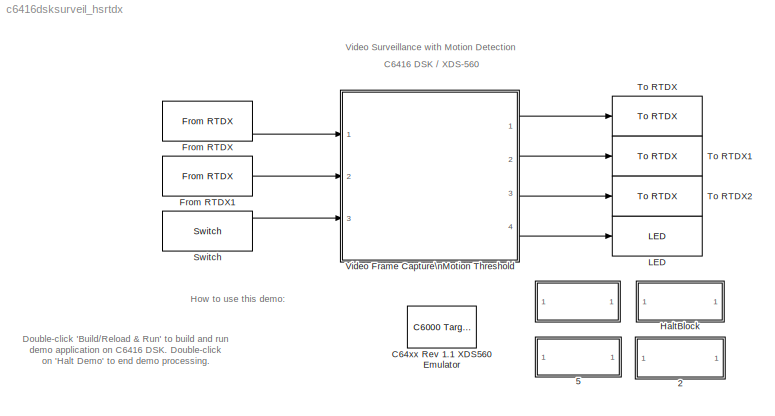
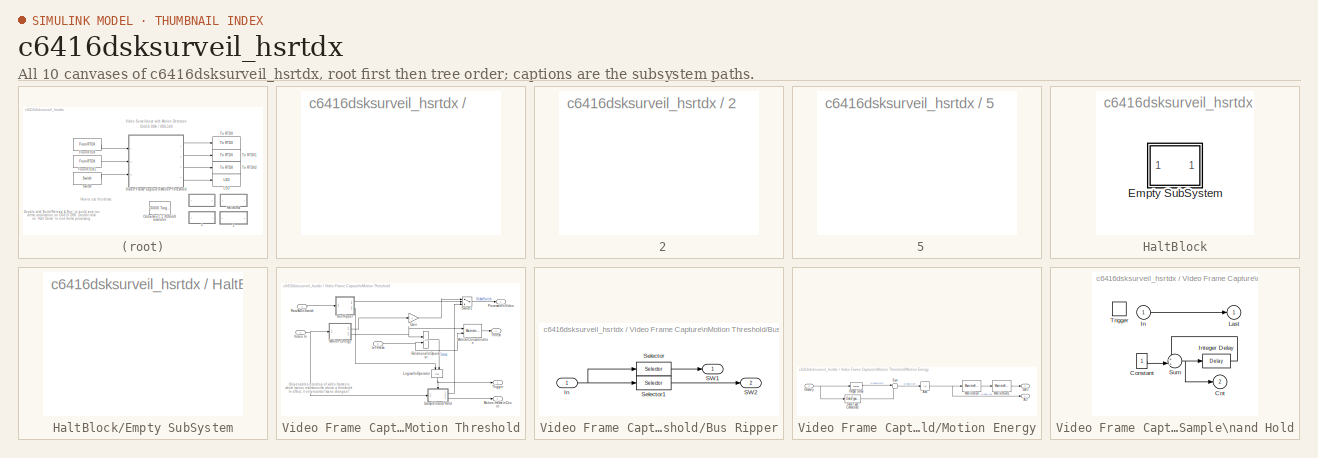
[diagram: thumbnail index - all 10 canvases of the model, root first then tree order]
MODEL c6416dsksurveil_hsrtdx
KIND model
BLOCK [SubSystem]  
  MaskDisplay = disp(sprintf('Build / Reload\\n& Run'))
  MaskIconFrame = on
  MaskIconOpaque = on
  MaskIconRotate = none
  MaskIconUnits = autoscale
  MaskType = Run demo
  MinAlgLoopOccurrences = off
  OpenFcn = surveil_script('run')
  Ports = []
  ShowPortLabels = off
  TreatAsAtomicUnit = off
BLOCK [SubSystem]  2
  MaskDescription = Double-clicking this button will display the demo script which generates code, builds, loads, executes application on the DSP, and arbitrates RTDX transfers.
  MaskDisplay = disp(sprintf('View Demo \\nScript'))
  MaskIconFrame = on
  MaskIconOpaque = on
  MaskIconRotate = none
  MaskIconUnits = autoscale
  MaskType = Run demo
  MinAlgLoopOccurrences = off
  OpenFcn = edit surveil_script
  Ports = []
  ShowPortLabels = off
  TreatAsAtomicUnit = off
BLOCK [SubSystem]  5
  MaskDescription = Double-clicking this button will display the demo script which generates code, builds, loads, executes application on the DSP, and arbitrates RTDX transfers.
  MaskDisplay = disp('Info')
  MaskIconFrame = on
  MaskIconOpaque = on
  MaskIconRotate = none
  MaskIconUnits = autoscale
  MaskType = Run demo
  MinAlgLoopOccurrences = off
  OpenFcn = web(fullfile(matlabroot,'toolbox','rtw','targets','tic6000','tic6000demos','html','VideoSurveillance_doc.html'))
  Ports = []
  ShowPortLabels = off
  TreatAsAtomicUnit = off
BLOCK [Reference] C64xx Rev 1.1 XDS560 Emulator  REF=c6000tgtpreflib/C6000 Target\nPreferences
  Ports = []
  ShowPortLabels = on
  SourceBlock = c6000tgtpreflib/C6000 Target\nPreferences
  SourceType = C6000 Target Preferences
  UserData = DataTag0
  UserDataPersistent = on
BLOCK [Reference] From RTDX  REF=rtdxBlocks/From RTDX
  Ports = [0, 1]
  SourceBlock = rtdxBlocks/From RTDX
  SourceType = From RTDX
  Ts = 1/15
  channelNameStr = videoFrames
  dType = uint8
  dims = [120 160]
  icMaskVar = 0
  isBlocking = off
  isChannelEnabled = on
  isFrame = off
  isHighSpeedRTDXUsed = on
BLOCK [Reference] From RTDX1  REF=rtdxBlocks/From RTDX
  Ports = [0, 1]
  SourceBlock = rtdxBlocks/From RTDX
  SourceType = From RTDX
  Ts = 1/15
  channelNameStr = motionThreshold
  dType = int32
  dims = [1 1]
  icMaskVar = 1.5e5
  isBlocking = off
  isChannelEnabled = on
  isFrame = off
  isHighSpeedRTDXUsed = on
BLOCK [SubSystem] HaltBlock
  AncestorBlock = c6711dsklib/Reset
  Description = Terminates RTDX processing as necessary, and resets DSP.
  MaskDisplay = disp('Halt Demo');
  MaskIconFrame = on
  MaskIconOpaque = on
  MaskIconRotate = none
  MaskIconUnits = normalized
  MinAlgLoopOccurrences = off
  OpenFcn = surveil_script('halt')
  Ports = []
  TreatAsAtomicUnit = off
BLOCK [SubSystem] HaltBlock/Empty SubSystem
  MinAlgLoopOccurrences = off
  Ports = []
  TreatAsAtomicUnit = off
BLOCK [Reference] LED  REF=c6416dsklib/LED
  Ports = [1]
  SourceBlock = c6416dsklib/LED
  SourceType = C6416DSK LED
BLOCK [Reference] Switch  REF=c6416dsklib/Switch
  Ports = [0, 1]
  SourceBlock = c6416dsklib/Switch
  SourceType = C6416 DSK DIP Switch
  Ts = 1/15
  dType = Boolean
  sw0 = off
  sw1 = off
  sw2 = off
  sw3 = off
BLOCK [Reference] To RTDX  REF=rtdxBlocks/To RTDX
  Ports = [1]
  SourceBlock = rtdxBlocks/To RTDX
  SourceType = To RTDX
  channelNameStr = motionFrames
  isChannelEnabled = on
BLOCK [Reference] To RTDX1  REF=rtdxBlocks/To RTDX
  Ports = [1]
  SourceBlock = rtdxBlocks/To RTDX
  SourceType = To RTDX
  channelNameStr = eventCnt
  isChannelEnabled = on
BLOCK [Reference] To RTDX2  REF=rtdxBlocks/To RTDX
  Ports = [1]
  SourceBlock = rtdxBlocks/To RTDX
  SourceType = To RTDX
  channelNameStr = motionEst
  isChannelEnabled = on
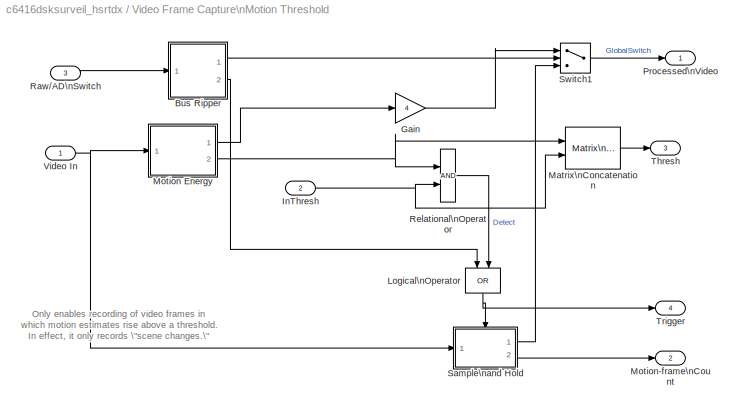
BLOCK [SubSystem] Video Frame Capture\nMotion Threshold
  MinAlgLoopOccurrences = off
  Ports = [3, 4]
  TreatAsAtomicUnit = on
BLOCK [SubSystem] Video Frame Capture\nMotion Threshold/Bus Ripper
  MinAlgLoopOccurrences = off
  Ports = [1, 2]
  TreatAsAtomicUnit = off
BLOCK [Inport] Video Frame Capture\nMotion Threshold/Bus Ripper/In
  IconDisplay = Port number
BLOCK [Outport] Video Frame Capture\nMotion Threshold/Bus Ripper/SW1
  BusOutputAsStruct = off
  IconDisplay = Port number
BLOCK [Outport] Video Frame Capture\nMotion Threshold/Bus Ripper/SW2
  BusOutputAsStruct = off
  IconDisplay = Port number
  Port = 2
BLOCK [Selector] Video Frame Capture\nMotion Threshold/Bus Ripper/Selector
  InputPortWidth = 4
  Ports = [1, 1]
BLOCK [Selector] Video Frame Capture\nMotion Threshold/Bus Ripper/Selector1
  Elements = 2
  InputPortWidth = 4
  Ports = [1, 1]
BLOCK [Gain] Video Frame Capture\nMotion Threshold/Gain
  Gain = 4
  OutDataType = uint(8)
  OutDataTypeMode = Specify via dialog
  ParameterDataType = uint(8)
  ParameterDataTypeMode = Inherit via internal rule
BLOCK [Inport] Video Frame Capture\nMotion Threshold/InThresh
  IconDisplay = Port number
  Port = 2
BLOCK [Logic] Video Frame Capture\nMotion Threshold/Logical\nOperator
  AllPortsSameDT = off
  Operator = OR
  Ports = [2, 1]
BLOCK [Reference] Video Frame Capture\nMotion Threshold/Matrix\nConcatenation  REF=simulink/Math\nOperations/Matrix\nConcatenation
  Ports = [2, 1]
  SourceBlock = simulink/Math\nOperations/Matrix\nConcatenation
  SourceType = Matrix Concatenation
  catMethod = Vertical
  numInports = 2
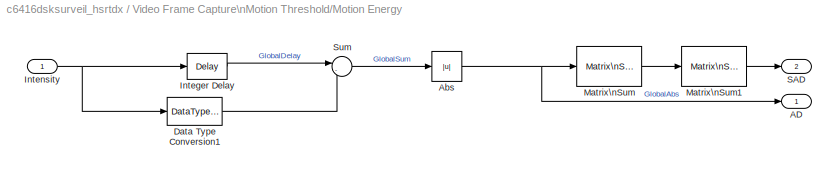
BLOCK [SubSystem] Video Frame Capture\nMotion Threshold/Motion Energy
  MinAlgLoopOccurrences = off
  Ports = [1, 2]
  TreatAsAtomicUnit = off
BLOCK [Outport] Video Frame Capture\nMotion Threshold/Motion Energy/AD
  BusOutputAsStruct = off
  IconDisplay = Port number
BLOCK [Abs] Video Frame Capture\nMotion Threshold/Motion Energy/Abs
BLOCK [DataTypeConversion] Video Frame Capture\nMotion Threshold/Motion Energy/Data Type Conversion1
  OutDataTypeMode = int16
  SaturateOnIntegerOverflow = off
BLOCK [Reference] Video Frame Capture\nMotion Threshold/Motion Energy/Integer Delay  REF=dspsigops/Delay
  Ports = [1, 1]
  SourceBlock = dspsigops/Delay
  SourceType = Integer Delay
  delay = 1
  ic = 0
  reset_popup = None
BLOCK [Inport] Video Frame Capture\nMotion Threshold/Motion Energy/Intensity
  IconDisplay = Port number
BLOCK [Reference] Video Frame Capture\nMotion Threshold/Motion Energy/Matrix\nSum  REF=dspmtrx3/Matrix\nSum
  Dim = Columns
  Ports = [1, 1]
  SourceBlock = dspmtrx3/Matrix\nSum
  SourceType = Matrix Sum
  accumFracLength = 30
  accumMode = Same as output
  accumWordLength = 32
  additionalParams = on
  allowOverrides = on
  outputFracLength = 0
  outputMode = User-defined
  outputWordLength = 32
  overflowMode = off
  roundingMode = Floor
BLOCK [Reference] Video Frame Capture\nMotion Threshold/Motion Energy/Matrix\nSum1  REF=dspmtrx3/Matrix\nSum
  Dim = Rows
  Ports = [1, 1]
  SourceBlock = dspmtrx3/Matrix\nSum
  SourceType = Matrix Sum
  accumFracLength = 30
  accumMode = Same as output
  accumWordLength = 32
  additionalParams = off
  allowOverrides = on
  outputFracLength = 15
  outputMode = Same as input
  outputWordLength = 16
  overflowMode = off
  roundingMode = Floor
BLOCK [Outport] Video Frame Capture\nMotion Threshold/Motion Energy/SAD
  BusOutputAsStruct = off
  IconDisplay = Port number
  Port = 2
BLOCK [Sum] Video Frame Capture\nMotion Threshold/Motion Energy/Sum
  IconShape = round
  InputSameDT = off
  Inputs = |-+
  OutDataTypeMode = Inherit via internal rule
  Ports = [2, 1]
  SaturateOnIntegerOverflow = off
BLOCK [Outport] Video Frame Capture\nMotion Threshold/Motion-frame\nCount
  BusOutputAsStruct = off
  IconDisplay = Port number
  Port = 2
BLOCK [Outport] Video Frame Capture\nMotion Threshold/Processed\nVideo
  BusOutputAsStruct = off
  IconDisplay = Port number
BLOCK [Inport] Video Frame Capture\nMotion Threshold/Raw//AD\nSwitch
  IconDisplay = Port number
  Port = 3
BLOCK [RelationalOperator] Video Frame Capture\nMotion Threshold/Relational\nOperator
  LogicOutDataTypeMode = Boolean
BLOCK [SubSystem] Video Frame Capture\nMotion Threshold/Sample\nand Hold
  AncestorBlock = dspsigops/Sample\nand Hold
  MaskCallbackString = |
  MaskDescription = Sample and hold input signal.
  MaskDisplay = disp('S/H')
  MaskEnableString = on,on
  MaskHelp = web(dspbhelp);
  MaskIconFrame = on
  MaskIconOpaque = off
  MaskIconRotate = none
  MaskIconUnits = autoscale
  MaskInitialization = switch trig\ncase 1, s='rising';\ncase 2, s='falling';\ncase 3, s='either';\nend\nset_param([gcb '/Trigger'],'triggertype',s);\n
  MaskPromptString = Trigger type:|Initial condition:
  MaskSelfModifiable = on
  MaskStyleString = popup(Rising edge|Falling edge|Either edge),edit
  MaskTabNameString = ,
  MaskToolTipString = on,on
  MaskTunableValueString = off,off
  MaskType = Sample and Hold
  MaskValueString = Either edge|0
  MaskVarAliasString = ,
  MaskVariables = trig=@1;initCond=@2;
  MaskVisibilityString = on,on
  MinAlgLoopOccurrences = off
  Ports = [1, 2, 0, 1]
  TreatAsAtomicUnit = on
BLOCK [Outport] Video Frame Capture\nMotion Threshold/Sample\nand Hold/ Cnt
  BusOutputAsStruct = off
  IconDisplay = Port number
  Port = 2
BLOCK [Constant] Video Frame Capture\nMotion Threshold/Sample\nand Hold/Constant
  OutDataTypeMode = int32
BLOCK [Inport] Video Frame Capture\nMotion Threshold/Sample\nand Hold/In
  IconDisplay = Port number
BLOCK [Reference] Video Frame Capture\nMotion Threshold/Sample\nand Hold/Integer Delay  REF=dspsigops/Delay
  Ports = [1, 1]
  SourceBlock = dspsigops/Delay
  SourceType = Integer Delay
  delay = 1
  ic = 0
  reset_popup = None
BLOCK [Outport] Video Frame Capture\nMotion Threshold/Sample\nand Hold/Last
  BusOutputAsStruct = off
  IconDisplay = Port number
  InitialOutput = initCond
BLOCK [Sum] Video Frame Capture\nMotion Threshold/Sample\nand Hold/Sum
  IconShape = round
  InputSameDT = off
  Inputs = ++|
  Ports = [2, 1]
  SaturateOnIntegerOverflow = off
BLOCK [TriggerPort] Video Frame Capture\nMotion Threshold/Sample\nand Hold/Trigger
  Ports = []
  StatesWhenEnabling = reset
  TriggerType = either
  ZeroCross = off
BLOCK [Switch] Video Frame Capture\nMotion Threshold/Switch1
  Criteria = u2 ~= 0
  InputSameDT = off
  SaturateOnIntegerOverflow = off
  ZeroCross = off
BLOCK [Outport] Video Frame Capture\nMotion Threshold/Thresh
  BusOutputAsStruct = off
  IconDisplay = Port number
  Port = 3
BLOCK [Outport] Video Frame Capture\nMotion Threshold/Trigger
  BusOutputAsStruct = off
  IconDisplay = Port number
  Port = 4
BLOCK [Inport] Video Frame Capture\nMotion Threshold/Video In
  IconDisplay = Port number
ANNOTATION (root): C6416 DSK / XDS-560
ANNOTATION (root): Double-click 'Build/Reload & Run' to build and run \ndemo application on C6416 DSK. Double-click\non 'Halt Demo' to end demo processing.\n
ANNOTATION (root): How to use this demo:
ANNOTATION (root): Video Surveillance with Motion Detection
ANNOTATION Video Frame Capture\nMotion Threshold: Only enables recording of video frames in\nwhich motion estimates rise above a threshold.\nIn effect, it only records \"scene changes.\"
LINE From RTDX1:1 -> Video Frame Capture\nMotion Threshold:2
LINE From RTDX:1 -> Video Frame Capture\nMotion Threshold:1
LINE Switch:1 -> Video Frame Capture\nMotion Threshold:3
NET Video Frame Capture\nMotion Threshold/Bus Ripper/In:1 -> Video Frame Capture\nMotion Threshold/Bus Ripper/Selector1:1, Video Frame Capture\nMotion Threshold/Bus Ripper/Selector:1
LINE Video Frame Capture\nMotion Threshold/Bus Ripper/Selector1:1 -> Video Frame Capture\nMotion Threshold/Bus Ripper/SW2:1
LINE Video Frame Capture\nMotion Threshold/Bus Ripper/Selector:1 -> Video Frame Capture\nMotion Threshold/Bus Ripper/SW1:1
LINE Video Frame Capture\nMotion Threshold/Bus Ripper:1 -> Video Frame Capture\nMotion Threshold/Switch1:2
LINE Video Frame Capture\nMotion Threshold/Bus Ripper:2 -> Video Frame Capture\nMotion Threshold/Logical\nOperator:1
LINE Video Frame Capture\nMotion Threshold/Gain:1 -> Video Frame Capture\nMotion Threshold/Switch1:1
NET Video Frame Capture\nMotion Threshold/InThresh:1 -> Video Frame Capture\nMotion Threshold/Matrix\nConcatenation:2, Video Frame Capture\nMotion Threshold/Relational\nOperator:2
NET Video Frame Capture\nMotion Threshold/Logical\nOperator:1 -> Video Frame Capture\nMotion Threshold/Sample\nand Hold:trigger, Video Frame Capture\nMotion Threshold/Trigger:1
LINE Video Frame Capture\nMotion Threshold/Matrix\nConcatenation:1 -> Video Frame Capture\nMotion Threshold/Thresh:1
NET Video Frame Capture\nMotion Threshold/Motion Energy/Abs:1 -> Video Frame Capture\nMotion Threshold/Motion Energy/AD:1, Video Frame Capture\nMotion Threshold/Motion Energy/Matrix\nSum:1
LINE Video Frame Capture\nMotion Threshold/Motion Energy/Data Type Conversion1:1 -> Video Frame Capture\nMotion Threshold/Motion Energy/Sum:2
LINE Video Frame Capture\nMotion Threshold/Motion Energy/Integer Delay:1 -> Video Frame Capture\nMotion Threshold/Motion Energy/Sum:1
NET Video Frame Capture\nMotion Threshold/Motion Energy/Intensity:1 -> Video Frame Capture\nMotion Threshold/Motion Energy/Data Type Conversion1:1, Video Frame Capture\nMotion Threshold/Motion Energy/Integer Delay:1
LINE Video Frame Capture\nMotion Threshold/Motion Energy/Matrix\nSum1:1 -> Video Frame Capture\nMotion Threshold/Motion Energy/SAD:1
LINE Video Frame Capture\nMotion Threshold/Motion Energy/Matrix\nSum:1 -> Video Frame Capture\nMotion Threshold/Motion Energy/Matrix\nSum1:1
LINE Video Frame Capture\nMotion Threshold/Motion Energy/Sum:1 -> Video Frame Capture\nMotion Threshold/Motion Energy/Abs:1
LINE Video Frame Capture\nMotion Threshold/Motion Energy:1 -> Video Frame Capture\nMotion Threshold/Gain:1
NET Video Frame Capture\nMotion Threshold/Motion Energy:2 -> Video Frame Capture\nMotion Threshold/Matrix\nConcatenation:1, Video Frame Capture\nMotion Threshold/Relational\nOperator:1
LINE Video Frame Capture\nMotion Threshold/Raw//AD\nSwitch:1 -> Video Frame Capture\nMotion Threshold/Bus Ripper:1
LINE Video Frame Capture\nMotion Threshold/Relational\nOperator:1 -> Video Frame Capture\nMotion Threshold/Logical\nOperator:2
LINE Video Frame Capture\nMotion Threshold/Sample\nand Hold/Constant:1 -> Video Frame Capture\nMotion Threshold/Sample\nand Hold/Sum:2
LINE Video Frame Capture\nMotion Threshold/Sample\nand Hold/In:1 -> Video Frame Capture\nMotion Threshold/Sample\nand Hold/Last:1
LINE Video Frame Capture\nMotion Threshold/Sample\nand Hold/Integer Delay:1 -> Video Frame Capture\nMotion Threshold/Sample\nand Hold/Sum:1
NET Video Frame Capture\nMotion Threshold/Sample\nand Hold/Sum:1 -> Video Frame Capture\nMotion Threshold/Sample\nand Hold/ Cnt:1, Video Frame Capture\nMotion Threshold/Sample\nand Hold/Integer Delay:1
LINE Video Frame Capture\nMotion Threshold/Sample\nand Hold:1 -> Video Frame Capture\nMotion Threshold/Switch1:3
LINE Video Frame Capture\nMotion Threshold/Sample\nand Hold:2 -> Video Frame Capture\nMotion Threshold/Motion-frame\nCount:1
LINE Video Frame Capture\nMotion Threshold/Switch1:1 -> Video Frame Capture\nMotion Threshold/Processed\nVideo:1
NET Video Frame Capture\nMotion Threshold/Video In:1 -> Video Frame Capture\nMotion Threshold/Motion Energy:1, Video Frame Capture\nMotion Threshold/Sample\nand Hold:1
LINE Video Frame Capture\nMotion Threshold:1 -> To RTDX:1
LINE Video Frame Capture\nMotion Threshold:2 -> To RTDX1:1
LINE Video Frame Capture\nMotion Threshold:3 -> To RTDX2:1
LINE Video Frame Capture\nMotion Threshold:4 -> LED:1
note: NET lines group one-source signal fan-out (src -> all destinations, sorted); 1:1 wires keep LINE
